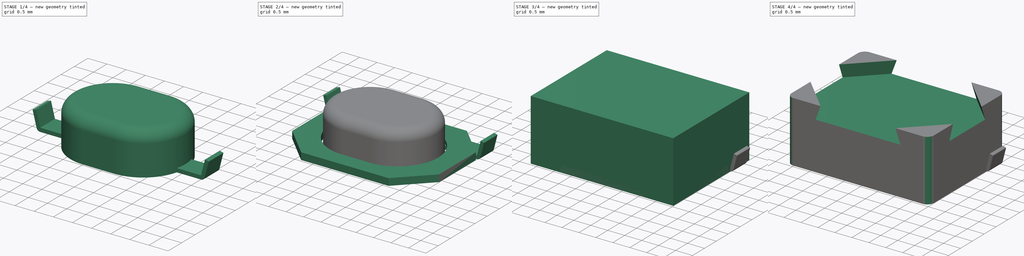
[diagram: build sequence overview — one tinted view per stage of 4, left to right]
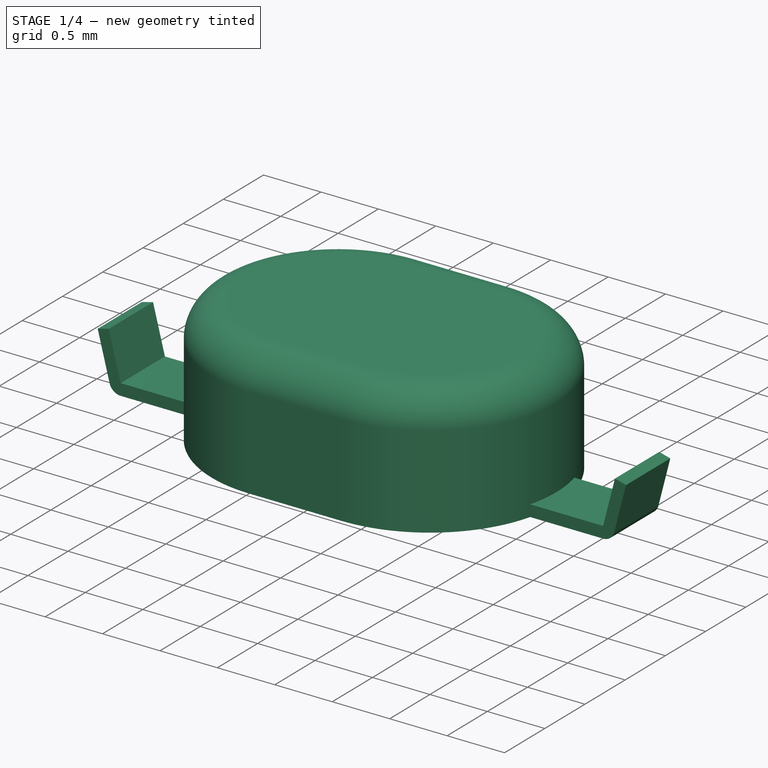
[diagram: stage 1 of 4 — iso view after this stage's code; geometry added in this stage tinted green]
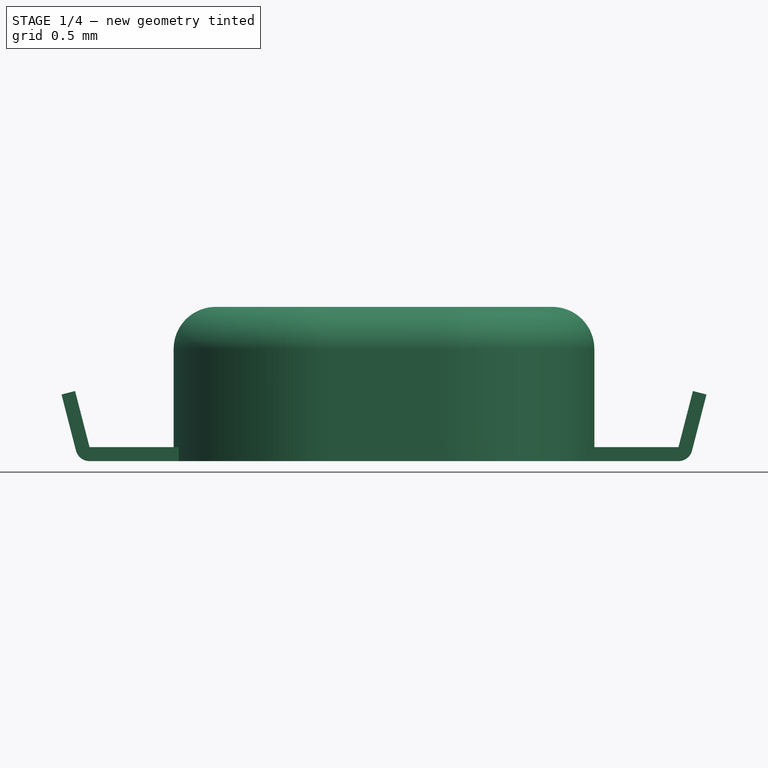
[diagram: stage 1 of 4 — front view after this stage's code; geometry added in this stage tinted green]
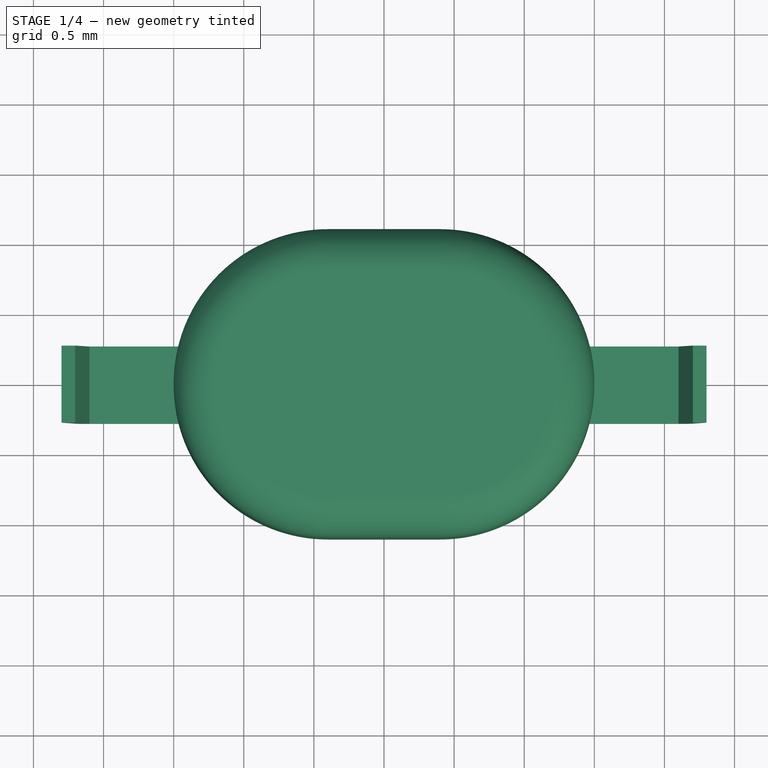
[diagram: stage 1 of 4 — top view after this stage's code; geometry added in this stage tinted green]
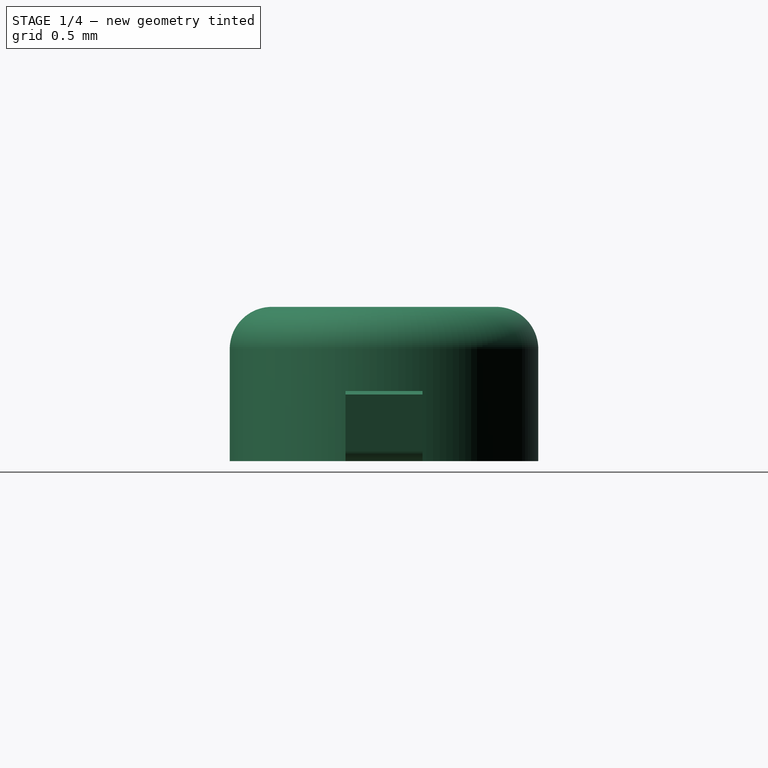
[diagram: stage 1 of 4 — right view after this stage's code; geometry added in this stage tinted green]
FCSTD DOCUMENT  (FreeCAD 0.20R29177 (Git))
Label: Tac Switch
License: All rights reserved
LicenseURL: http://en.wikipedia.org/wiki/All_rights_reserved
objects: Sketcher::SketchObject×5, PartDesign::Pad×4, PartDesign::Body×4, PartDesign::Draft×2, PartDesign::Fillet×2, PartDesign::Pocket×1, PartDesign::Chamfer×1, Part::Mirroring×1
note: 30 computed .brp shape members not serialized (recipe doc carries the construction recipe); baked Part::Feature solids carry a one-line shape summary decoded from their .brp

FEATURE [PartDesign::Body] Body001
  Group = -> [Sketch002,Pad001,Chamfer,Draft001]
  Origin = -> Origin001
  Placement = pos=(0,0,1.4) rot=(0,0,1;0rad)
  Tip = -> Draft001
FEATURE [Sketcher::SketchObject] Sketch003
  FullyConstrained = true
  MapMode = 5
  Placement = pos=(0,0,0) rot=(1,0,0;1.5708rad)
  Support = -> [XZ_Plane002]
  sketch-geometry (11):
    g0: LineSegment StartX=-2.3 StartY=0.475025 StartZ=0 EndX=-2.20317 EndY=0.5 EndZ=0
    g1: LineSegment StartX=2.3 StartY=0.475025 StartZ=0 EndX=2.19683 EndY=0.0750251 EndZ=0
    g2: LineSegment StartX=2.1 StartY=0 StartZ=0 EndX=-2.1 EndY=0 EndZ=0
    g3: LineSegment StartX=-2.19683 StartY=0.0750251 StartZ=0 EndX=-2.3 EndY=0.475025 EndZ=0
    g4: LineSegment StartX=2.20317 StartY=0.5 StartZ=0 EndX=2.1 EndY=0.1 EndZ=0
    g5: LineSegment StartX=2.1 StartY=0.1 StartZ=0 EndX=-2.1 EndY=0.1 EndZ=0
    g6: LineSegment StartX=-2.1 StartY=0.1 StartZ=0 EndX=-2.20317 EndY=0.5 EndZ=0
    g7: LineSegment StartX=2.20317 StartY=0.5 StartZ=0 EndX=2.3 EndY=0.475025 EndZ=0
    g8: LineSegment StartX=0 StartY=0.1 StartZ=0 EndX=0 EndY=0 EndZ=0
    g9: ArcOfCircle CenterX=-2.1 CenterY=0.1 CenterZ=0 NormalX=0 NormalY=0 NormalZ=1 AngleXU=0 Radius=0.1 StartAngle=3.39401 EndAngle=4.71239
    g10: ArcOfCircle CenterX=2.1 CenterY=0.1 CenterZ=0 NormalX=0 NormalY=0 NormalZ=1 AngleXU=0 Radius=0.1 StartAngle=4.71239 EndAngle=6.03076
  constraints (30):
    c: Coincident(g7,g1)
    c: Coincident(g3,g0)
    c: Horizontal(g2)
    c: Coincident(g4,g5)
    c: Coincident(g5,g6)
    c: Coincident(g6,g0)
    c: Coincident(g4,g7)
    c: Perpendicular(g3,g0)
    c: Parallel(g3,g6)
    c: Perpendicular(g1,g7)
    c: Parallel(g4,g1)
    c: Symmetric(g4,g0,g-2)
    c: Symmetric(g5,g4,g-2)
    c: Equal(g0,g7)
    c: PointOnObject(g8,g5)
    c: PointOnObject(g8,g2)
    c: Vertical(g8)
    c: Equal(g8,g0)
    c: DistanceX(g5,g5) = 4.2
    c: DistanceY(g-1,g4) = 0.5
    c: DistanceX(g0,g1) = 4.6
    c: Tangent(g3,g9) = 1.5708
    c: Tangent(g2,g9) = 1.5708
    c: Tangent(g1,g10) = 1.5708
    c: Tangent(g2,g10) = 1.5708
    c: PointOnObject(g2,g-1)
    c: Distance(g0) = 0.1
    c: Radius(g9) = 0.1
    c: Equal(g9,g10)
    c: PointOnObject(g8,g-2)
FEATURE [PartDesign::Pad] Pad002
  Direction = (0,-1,2e-16)
  Length = 0.55
  Length2 = 10
  Midplane = true
  Placement = pos=(0,0,0) rot=(1,0,0;1.5708rad)
  Profile = -> Sketch003
  ReferenceAxis = -> Sketch003 [N_Axis]
  Type = 0
FEATURE [Sketcher::SketchObject] Sketch004
  FullyConstrained = true
  MapMode = 5
  Support = -> [XY_Plane003]
  sketch-geometry (4):
    g0: ArcOfCircle CenterX=-0.4 CenterY=0 CenterZ=0 NormalX=0 NormalY=0 NormalZ=1 AngleXU=0 Radius=1.1 StartAngle=1.5708 EndAngle=4.71239
    g1: ArcOfCircle CenterX=0.4 CenterY=0 CenterZ=0 NormalX=0 NormalY=0 NormalZ=1 AngleXU=0 Radius=1.1 StartAngle=4.71239 EndAngle=7.85398
    g2: LineSegment StartX=-0.4 StartY=-1.1 StartZ=0 EndX=0.4 EndY=-1.1 EndZ=0
    g3: LineSegment StartX=0.4 StartY=1.1 StartZ=0 EndX=-0.4 EndY=1.1 EndZ=0
  constraints (9):
    c: Tangent(g0,g2) = -1.5708
    c: Tangent(g2,g1) = -1.5708
    c: Tangent(g1,g3) = -1.5708
    c: Tangent(g3,g0) = -1.5708
    c: Equal(g0,g1)
    c: PointOnObject(g0,g-1)
    c: Symmetric(g0,g1,g-2)
    c: DistanceY(g1,g1) = 2.2
    c: DistanceX(g3,g3) = 0.8
FEATURE [PartDesign::Pad] Pad003
  Direction = (0,0,1)
  Length = 1.1
  Length2 = 10
  Profile = -> Sketch004
  ReferenceAxis = -> Sketch004 [N_Axis]
  Type = 0
FEATURE [PartDesign::Fillet] Fillet001
  Base = -> Pad003 [Edge4]
  BaseFeature = -> Pad003
  Radius = 0.3
  SupportTransform = false
  UseAllEdges = false
FEATURE [PartDesign::Body] Body003
  Group = -> [Sketch004,Pad003,Fillet001]
  Origin = -> Origin003
  Placement = pos=(0,0,1.4) rot=(0,0,1;0rad)
  Tip = -> Fillet001
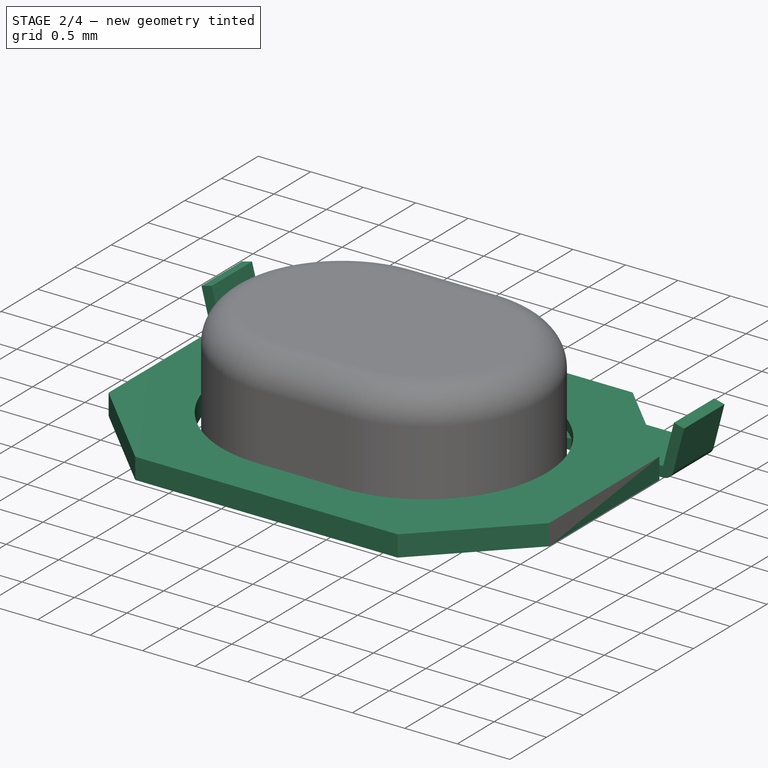
[diagram: stage 2 of 4 — iso view after this stage's code; geometry added in this stage tinted green]
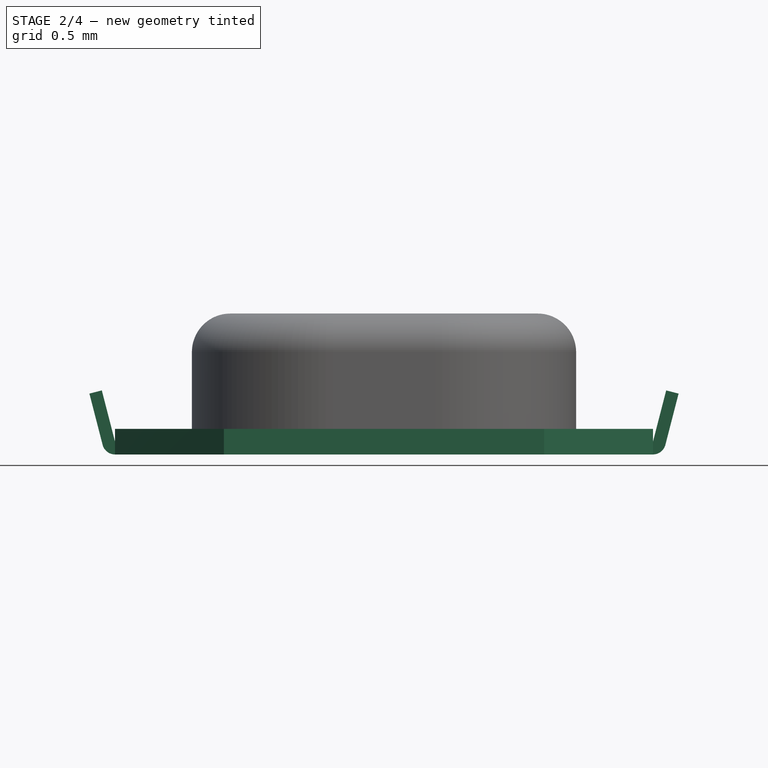
[diagram: stage 2 of 4 — front view after this stage's code; geometry added in this stage tinted green]
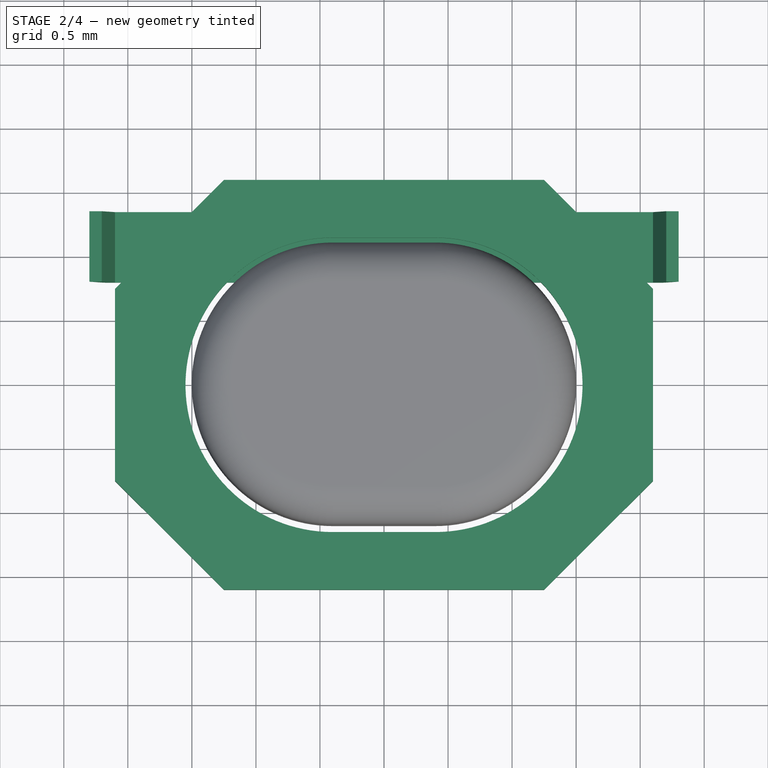
[diagram: stage 2 of 4 — top view after this stage's code; geometry added in this stage tinted green]
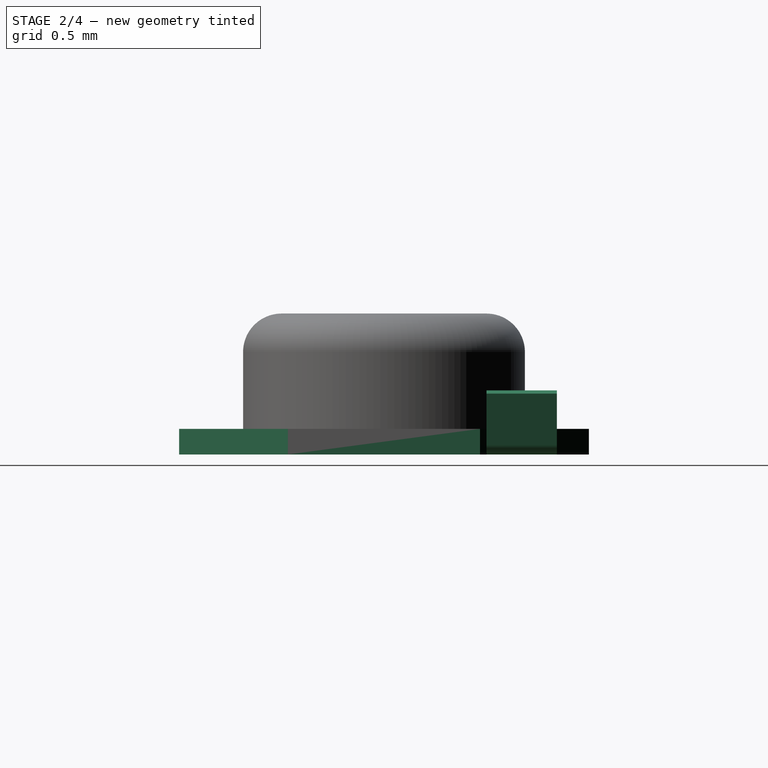
[diagram: stage 2 of 4 — right view after this stage's code; geometry added in this stage tinted green]
FEATURE [PartDesign::Body] Body
  Group = -> [Sketch,Pad,Sketch001,Pocket,Draft,Fillet]
  Origin = -> Origin
  Tip = -> Fillet
FEATURE [Sketcher::SketchObject] Sketch002
  FullyConstrained = true
  MapMode = 5
  Support = -> [XY_Plane001]
  sketch-geometry (8):
    g0: LineSegment StartX=-2.1 StartY=1.6 StartZ=0 EndX=2.1 EndY=1.6 EndZ=0
    g1: LineSegment StartX=2.1 StartY=1.6 StartZ=0 EndX=2.1 EndY=-1.6 EndZ=0
    g2: LineSegment StartX=2.1 StartY=-1.6 StartZ=0 EndX=-2.1 EndY=-1.6 EndZ=0
    g3: LineSegment StartX=-2.1 StartY=-1.6 StartZ=0 EndX=-2.1 EndY=1.6 EndZ=0
    g4: ArcOfCircle CenterX=-0.4 CenterY=0 CenterZ=0 NormalX=0 NormalY=0 NormalZ=1 AngleXU=0 Radius=1.15 StartAngle=1.5708 EndAngle=4.71239
    g5: ArcOfCircle CenterX=0.4 CenterY=0 CenterZ=0 NormalX=0 NormalY=0 NormalZ=1 AngleXU=0 Radius=1.15 StartAngle=4.71239 EndAngle=7.85398
    g6: LineSegment StartX=-0.4 StartY=-1.15 StartZ=0 EndX=0.4 EndY=-1.15 EndZ=0
    g7: LineSegment StartX=0.4 StartY=1.15 StartZ=0 EndX=-0.4 EndY=1.15 EndZ=0
  constraints (20):
    c: Coincident(g0,g1)
    c: Coincident(g1,g2)
    c: Coincident(g2,g3)
    c: Coincident(g3,g0)
    c: Horizontal(g0)
    c: Horizontal(g2)
    c: Vertical(g1)
    c: Vertical(g3)
    c: Symmetric(g1,g0,g-1)
    c: DistanceX(g0,g0) = 4.2
    c: DistanceY(g3,g3) = 3.2
    c: Tangent(g4,g6) = -1.5708
    c: Tangent(g6,g5) = -1.5708
    c: Tangent(g5,g7) = -1.5708
    c: Tangent(g7,g4) = -1.5708
    c: Equal(g4,g5)
    c: PointOnObject(g4,g-1)
    c: Symmetric(g4,g5,g-2)
    c: DistanceY(g5,g5) = 2.3
    c: DistanceX(g7,g7) = 0.8
FEATURE [PartDesign::Pad] Pad001
  Direction = (0,0,1)
  Length = 0.2
  Length2 = 10
  Profile = -> Sketch002
  ReferenceAxis = -> Sketch002 [N_Axis]
  Type = 0
FEATURE [PartDesign::Chamfer] Chamfer
  Angle = 45
  Base = -> Pad001 [Edge5,Edge2,Edge1,Edge8]
  BaseFeature = -> Pad001
  ChamferType = 0
  FlipDirection = false
  Size = 0.85
  Size2 = 1
  SupportTransform = false
  UseAllEdges = false
FEATURE [PartDesign::Body] Body002
  Group = -> [Sketch003,Pad002]
  Origin = -> Origin002
  Placement = pos=(0,-1.075,0) rot=(0,0,1;0rad)
  Tip = -> Pad002
FEATURE [Part::Mirroring] Part__Mirroring  label="Body002 (Mirror #1)"
  Base = (0,0,0)
  Normal = (0,1,0)
  Source = -> Body002
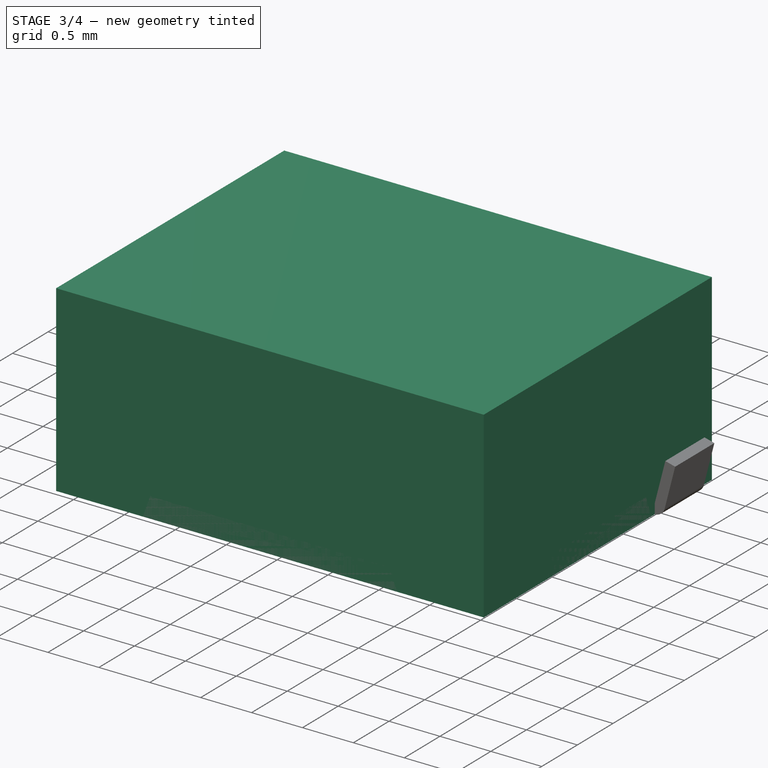
[diagram: stage 3 of 4 — iso view after this stage's code; geometry added in this stage tinted green]
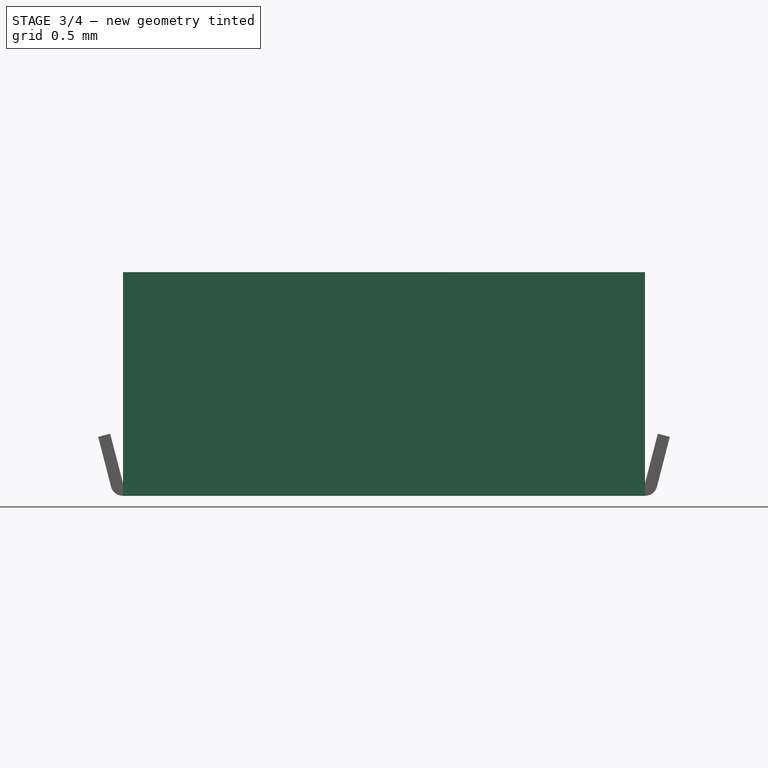
[diagram: stage 3 of 4 — front view after this stage's code; geometry added in this stage tinted green]
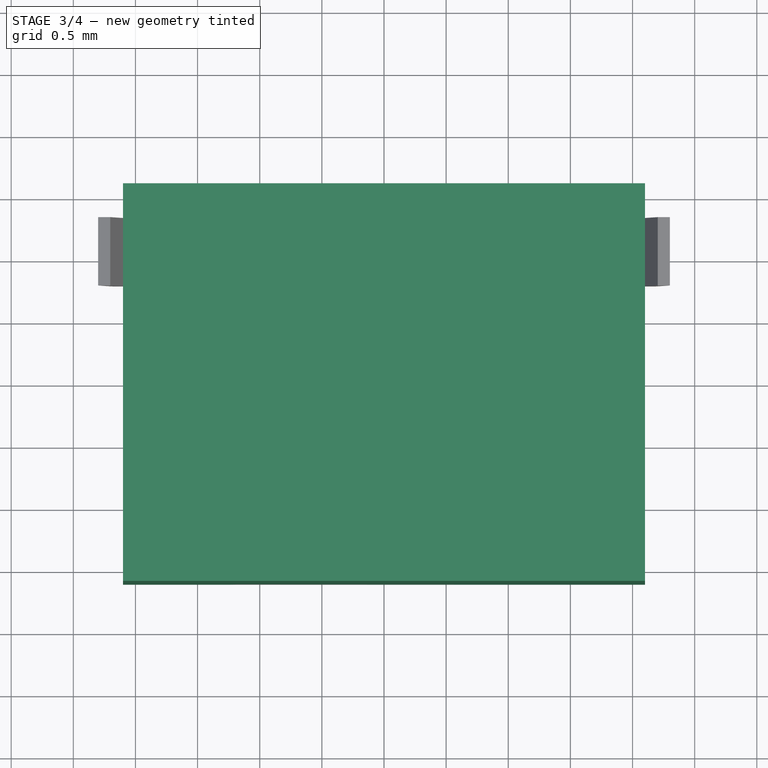
[diagram: stage 3 of 4 — top view after this stage's code; geometry added in this stage tinted green]
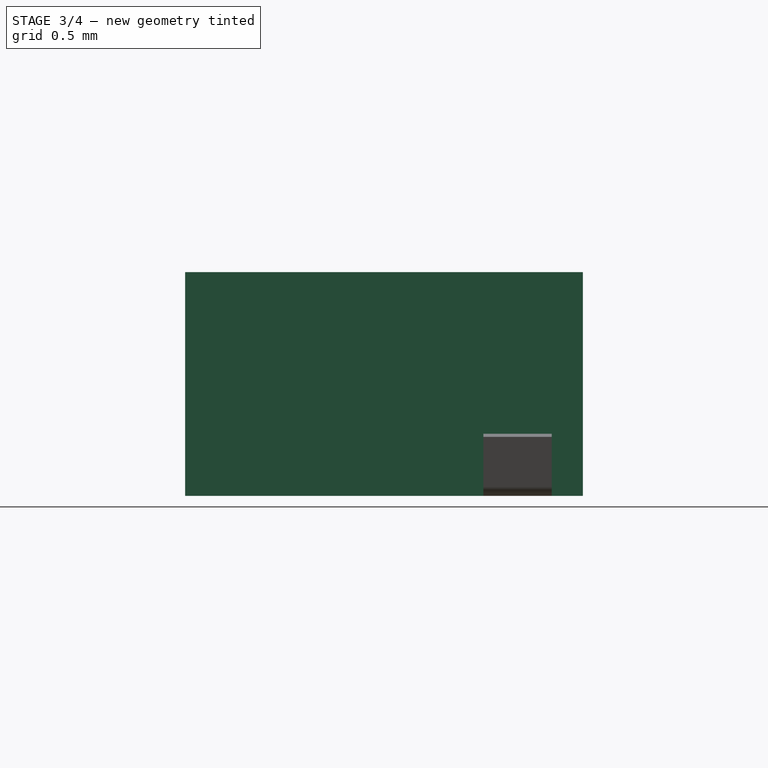
[diagram: stage 3 of 4 — right view after this stage's code; geometry added in this stage tinted green]
FEATURE [Sketcher::SketchObject] Sketch
  FullyConstrained = true
  MapMode = 5
  Support = -> [XY_Plane]
  sketch-geometry (4):
    g0: LineSegment StartX=-2.1 StartY=1.6 StartZ=0 EndX=2.1 EndY=1.6 EndZ=0
    g1: LineSegment StartX=2.1 StartY=1.6 StartZ=0 EndX=2.1 EndY=-1.6 EndZ=0
    g2: LineSegment StartX=2.1 StartY=-1.6 StartZ=0 EndX=-2.1 EndY=-1.6 EndZ=0
    g3: LineSegment StartX=-2.1 StartY=-1.6 StartZ=0 EndX=-2.1 EndY=1.6 EndZ=0
  constraints (11):
    c: Coincident(g0,g1)
    c: Coincident(g1,g2)
    c: Coincident(g2,g3)
    c: Coincident(g3,g0)
    c: Horizontal(g0)
    c: Horizontal(g2)
    c: Vertical(g1)
    c: Vertical(g3)
    c: Symmetric(g0,g1,g-1)
    c: DistanceY(g3,g3) = 3.2
    c: DistanceX(g0,g0) = 4.2
FEATURE [PartDesign::Pad] Pad
  Direction = (0,0,1)
  Length = 1.8
  Length2 = 10
  Profile = -> Sketch
  ReferenceAxis = -> Sketch [N_Axis]
  Type = 0
FEATURE [PartDesign::Draft] Draft001
  Angle = 14.5
  Base = -> Chamfer [Face3,Face8,Face9,Face4]
  BaseFeature = -> Chamfer
  NeutralPlane = -> Chamfer [Face2]
  PullDirection = -> Chamfer [Edge32]
  SupportTransform = false
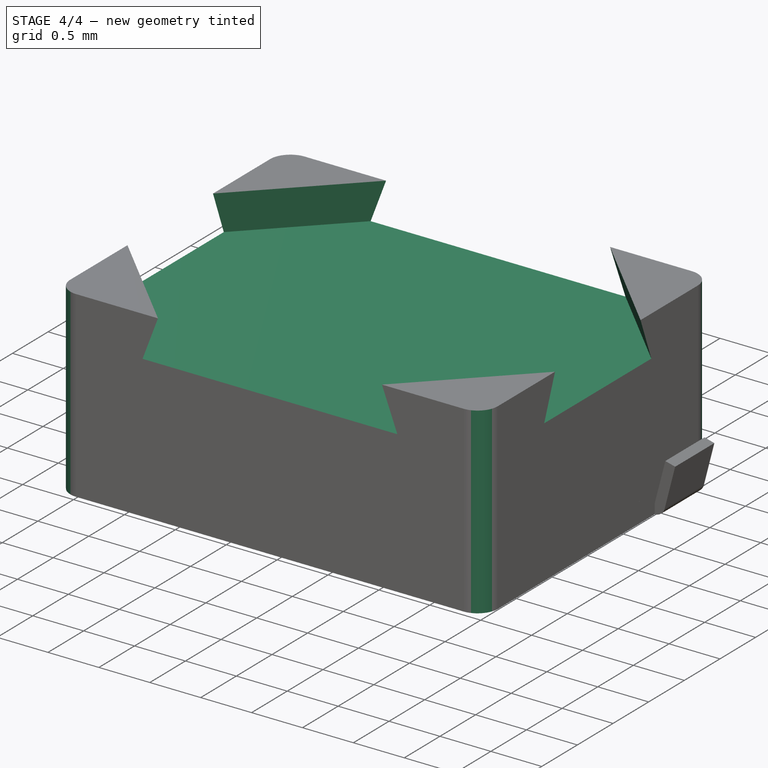
[diagram: stage 4 of 4 — iso view after this stage's code; geometry added in this stage tinted green]
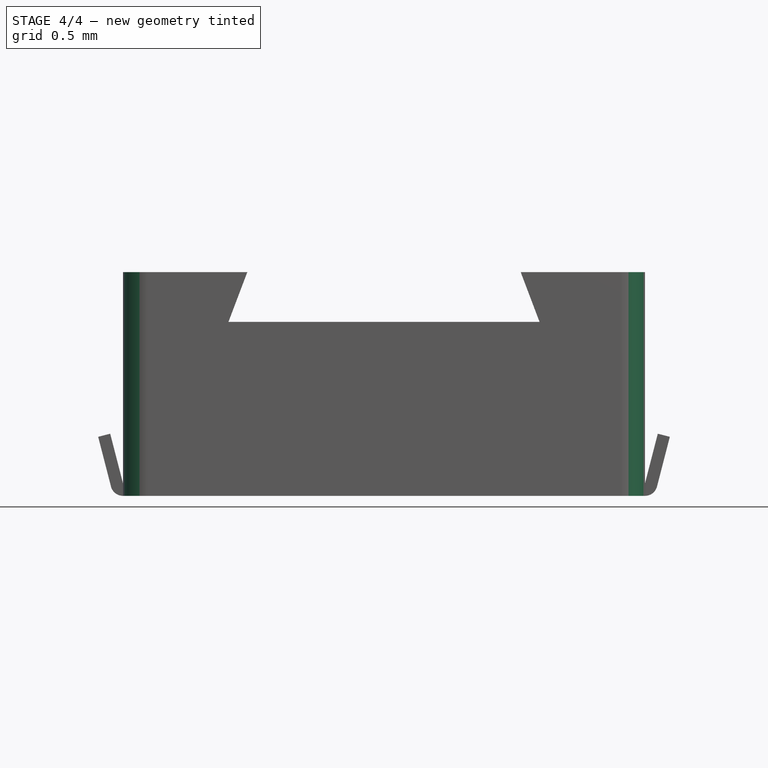
[diagram: stage 4 of 4 — front view after this stage's code; geometry added in this stage tinted green]
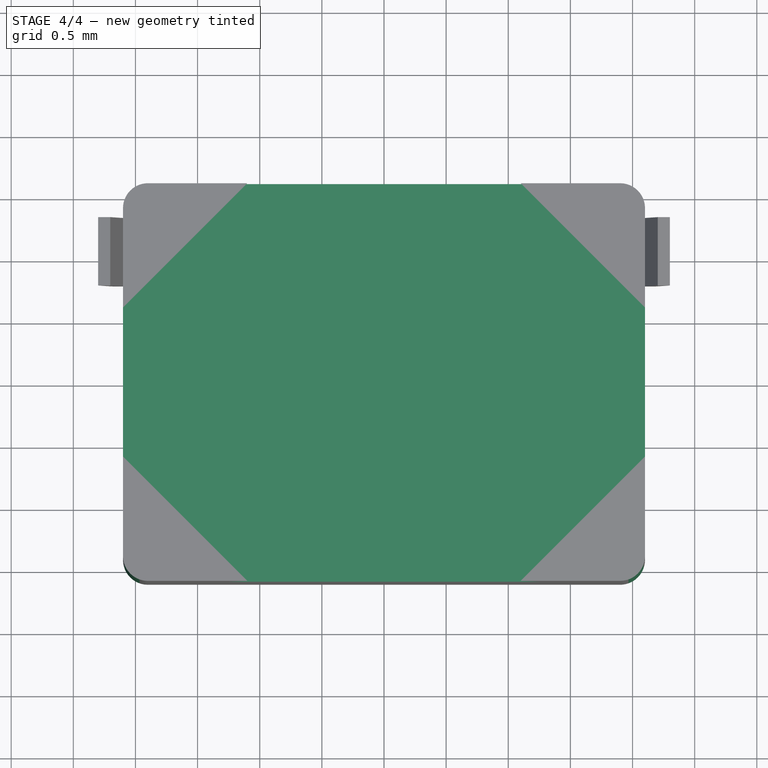
[diagram: stage 4 of 4 — top view after this stage's code; geometry added in this stage tinted green]
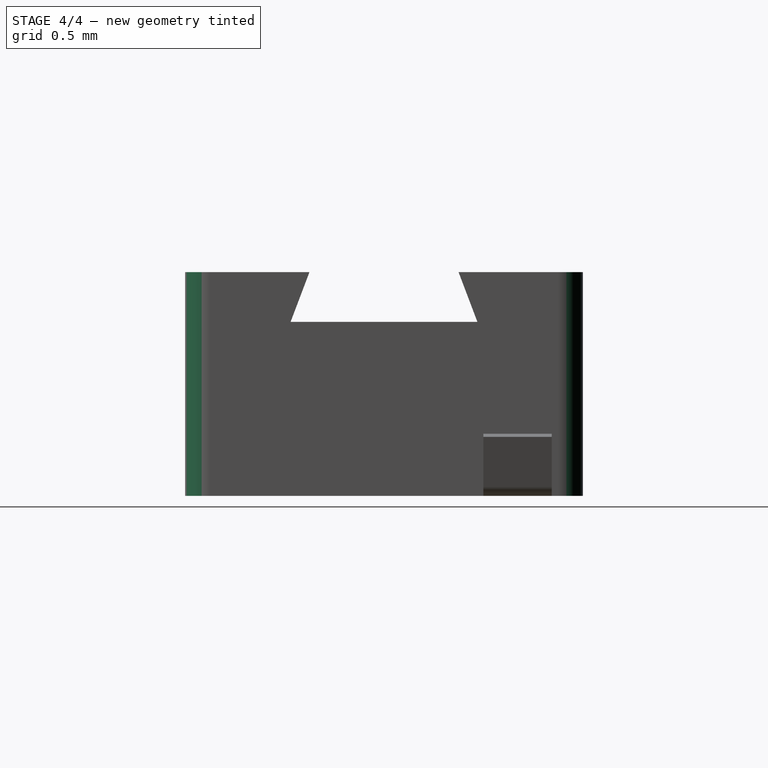
[diagram: stage 4 of 4 — right view after this stage's code; geometry added in this stage tinted green]
FEATURE [Sketcher::SketchObject] Sketch001
  ExternalGeometry = -> [Pad]
  FullyConstrained = true
  MapMode = 5
  Placement = pos=(0,0,1.8) rot=(0,0,1;0rad)
  Support = -> [Pad]
  sketch-geometry (8):
    g0: LineSegment StartX=-2.1 StartY=0.6 StartZ=0 EndX=-1.1 EndY=1.6 EndZ=0
    g1: LineSegment StartX=-1.1 StartY=1.6 StartZ=0 EndX=1.1 EndY=1.6 EndZ=0
    g2: LineSegment StartX=1.1 StartY=1.6 StartZ=0 EndX=2.1 EndY=0.6 EndZ=0
    g3: LineSegment StartX=2.1 StartY=0.6 StartZ=0 EndX=2.1 EndY=-0.6 EndZ=0
    g4: LineSegment StartX=2.1 StartY=-0.6 StartZ=0 EndX=1.1 EndY=-1.6 EndZ=0
    g5: LineSegment StartX=1.1 StartY=-1.6 StartZ=0 EndX=-1.1 EndY=-1.6 EndZ=0
    g6: LineSegment StartX=-1.1 StartY=-1.6 StartZ=0 EndX=-2.1 EndY=-0.6 EndZ=0
    g7: LineSegment StartX=-2.1 StartY=-0.6 StartZ=0 EndX=-2.1 EndY=0.6 EndZ=0
  constraints (24):
    c: PointOnObject(g0,g-4)
    c: PointOnObject(g0,g-3)
    c: Coincident(g0,g1)
    c: PointOnObject(g1,g-3)
    c: Coincident(g1,g2)
    c: PointOnObject(g2,g-6)
    c: Coincident(g2,g3)
    c: PointOnObject(g3,g-6)
    c: Coincident(g3,g4)
    c: PointOnObject(g4,g-5)
    c: Coincident(g4,g5)
    c: PointOnObject(g5,g-5)
    c: Coincident(g5,g6)
    c: PointOnObject(g6,g-4)
    c: Coincident(g6,g7)
    c: Coincident(g7,g0)
    c: Angle(g0,g-3) = 2.35619
    c: Perpendicular(g2,g0)
    c: Parallel(g0,g4)
    c: Parallel(g2,g6)
    c: Equal(g0,g2)
    c: Equal(g2,g4)
    c: Equal(g4,g6)
    c: DistanceX(g-4,g0) = 1
FEATURE [PartDesign::Pocket] Pocket
  BaseFeature = -> Pad
  Direction = (0,0,-1)
  Length = 0.4
  Length2 = 5
  Profile = -> Sketch001
  ReferenceAxis = -> Sketch001 [N_Axis]
  Type = 0
FEATURE [PartDesign::Draft] Draft
  Angle = 15
  Base = -> Pocket [Face7,Face13,Face12,Face5]
  BaseFeature = -> Pocket
  NeutralPlane = -> Pocket [Face8]
  PullDirection = -> Pocket [Edge25]
  SupportTransform = false
FEATURE [PartDesign::Fillet] Fillet
  Base = -> Draft [Edge30,Edge8,Edge12,Edge2]
  BaseFeature = -> Draft
  Radius = 0.2
  SupportTransform = false
  UseAllEdges = false
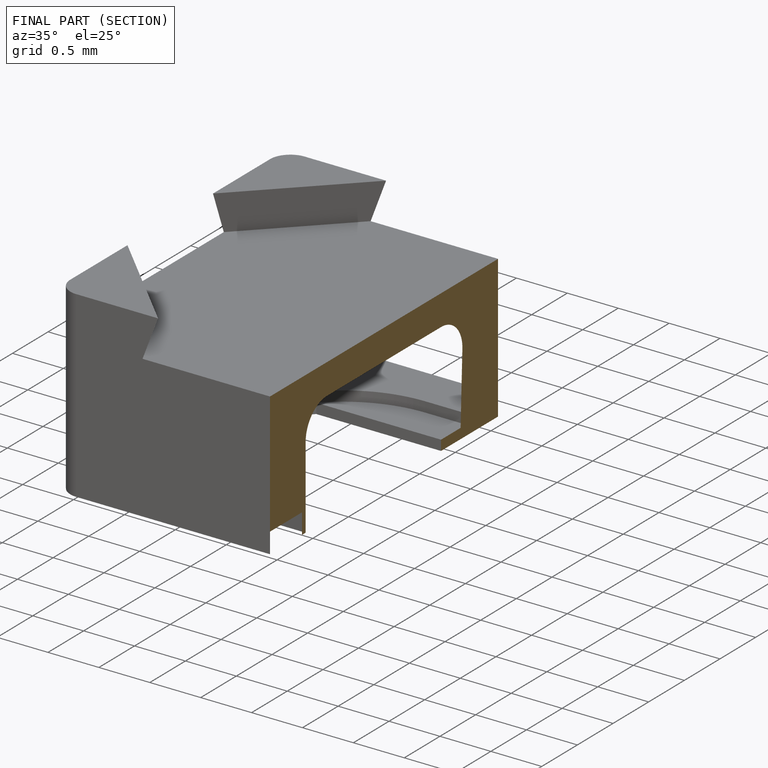
[diagram: finished part — half-section view (interior)]
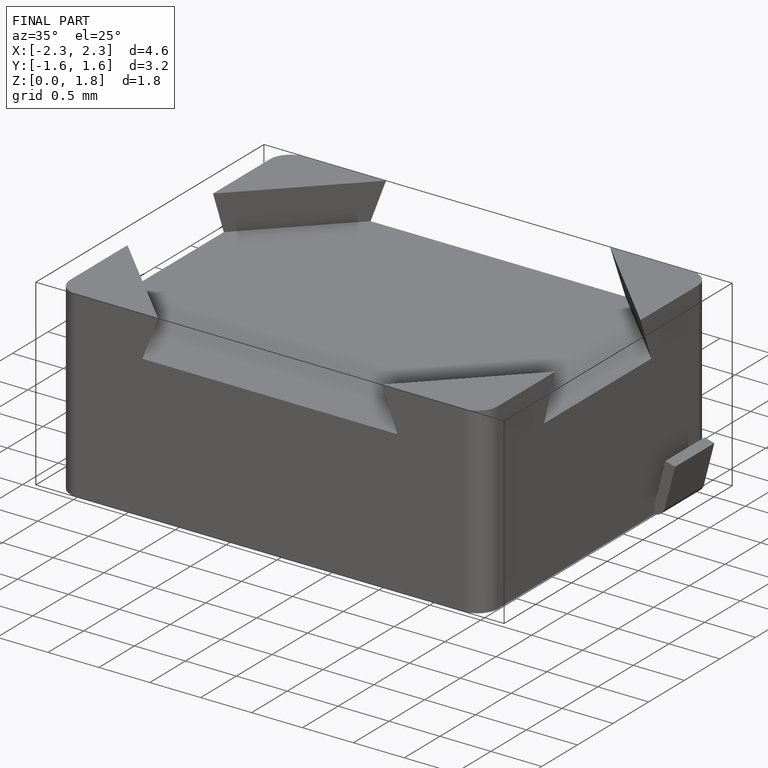
[diagram: finished part — iso view with bounding-box wireframe]
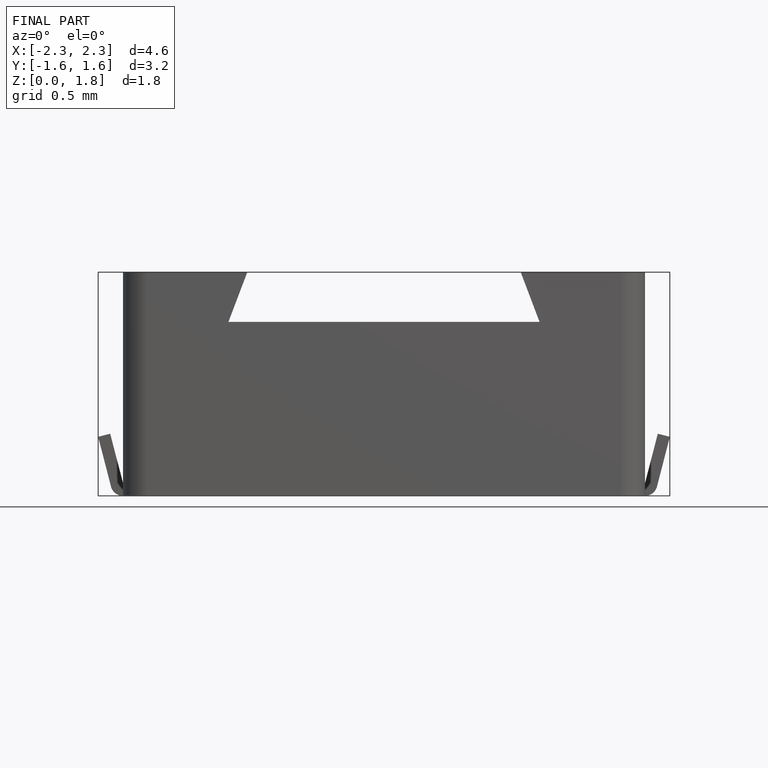
[diagram: finished part — front view with bounding-box wireframe]
